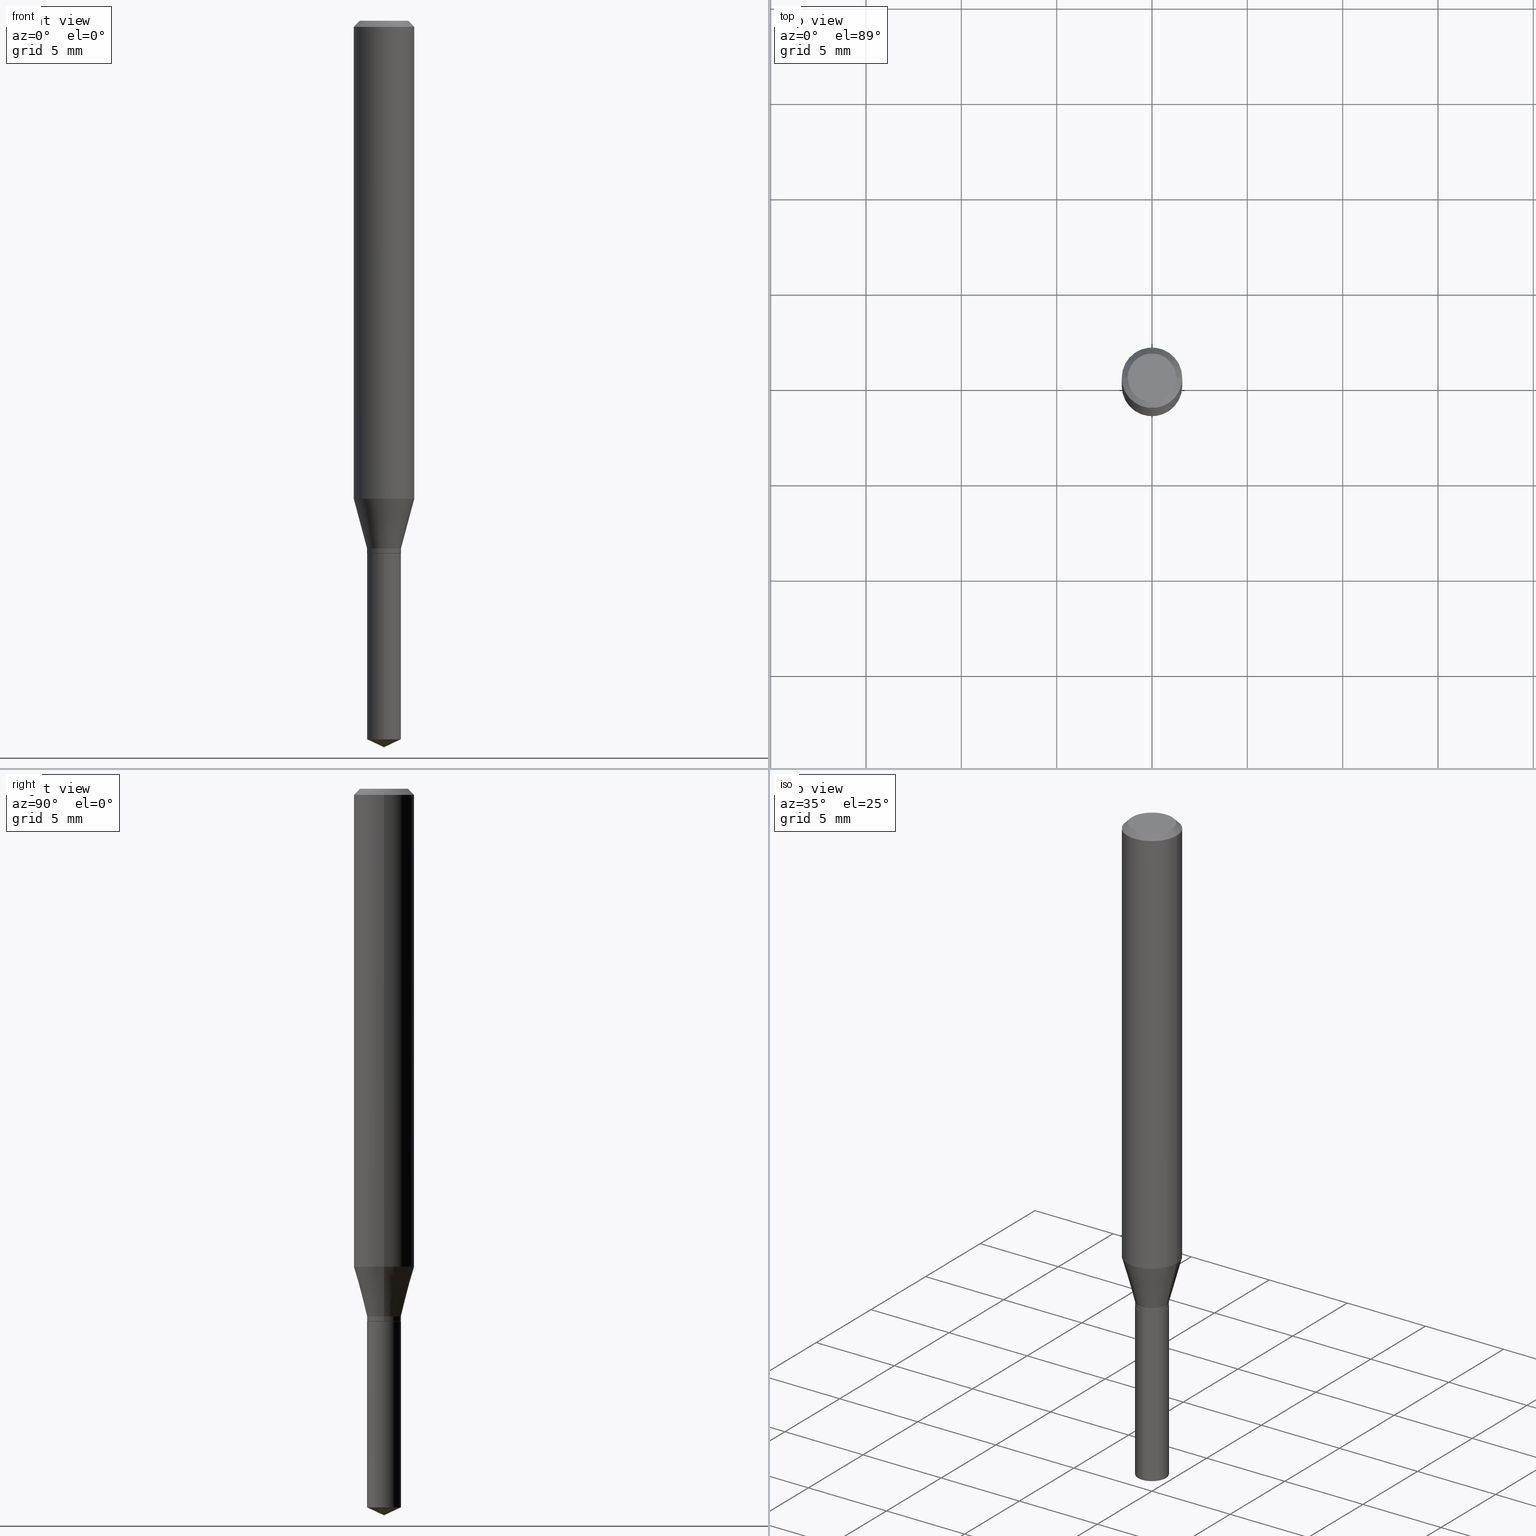
[diagram: canonical four-view strip — front | top / right | iso, engineering-drawing reading convention]
A machine part, canonical four-view strip (front | top / right | iso — engineering-drawing reading convention). The complete STEP part file that produces these views, byte-faithful:
ISO-10303-21;
HEADER;
FILE_DESCRIPTION (( 'STEP AP203' ),
    '1' );
FILE_NAME ('07348.STEP',
    '2024-04-23T20:38:07',
    ( '' ),
    ( '' ),
    'SwSTEP 2.0',
    'SolidWorks 2023',
    '' );
FILE_SCHEMA (( 'CONFIG_CONTROL_DESIGN' ));
ENDSEC;

DATA;
#1 = CARTESIAN_POINT ( 'NONE',  ( 2.664338264338706582E-29, -3.803968918669607738E-15, -1.089500000000000135 ) ) ;
#2 = VERTEX_POINT ( 'NONE', #422 ) ;
#3 = CARTESIAN_POINT ( 'NONE',  ( 2.664338264338706582E-29, -3.803968918669607738E-15, -1.089500000000000135 ) ) ;
#4 = EDGE_LOOP ( 'NONE', ( #256, #296, #30, #243 ) ) ;
#5 = DIRECTION ( 'NONE',  ( -2.445399690415121530E-29, 3.491580316559632610E-15, 1.000000000000000000 ) ) ;
#6 = AXIS2_PLACEMENT_3D ( 'NONE', #322, #138, #278 ) ;
#7 = DIRECTION ( 'NONE',  ( 0.7071067811865453523, -7.319954787623248157E-15, -0.7071067811865496822 ) ) ;
#8 = ADVANCED_FACE ( 'NONE', ( #265 ), #12, .T. ) ;
#9 = ORIENTED_EDGE ( 'NONE', *, *, #75, .T. ) ;
#10 = CARTESIAN_POINT ( 'NONE',  ( 3.893286209682126177E-47, -5.558580879666067980E-33, -1.592040838891559689E-18 ) ) ;
#11 = CYLINDRICAL_SURFACE ( 'NONE', #133, 0.03500000000000000333 ) ;
#12 = CONICAL_SURFACE ( 'NONE', #466, 0.03450000000000000289, 0.7853981633974141952 ) ;
#13 =( GEOMETRIC_REPRESENTATION_CONTEXT ( 3 ) GLOBAL_UNCERTAINTY_ASSIGNED_CONTEXT ( ( #213 ) ) GLOBAL_UNIT_ASSIGNED_CONTEXT ( ( #141, #244, #348 ) ) REPRESENTATION_CONTEXT ( 'NONE', 'WORKASPACE' ) );
#14 = EDGE_CURVE ( 'NONE', #472, #108, #423, .T. ) ;
#15 = APPROVAL_ROLE ( '' ) ;
#16 = ORIENTED_EDGE ( 'NONE', *, *, #136, .T. ) ;
#17 = APPLICATION_PROTOCOL_DEFINITION ( 'international standard', 'config_control_design', 1994, #55 ) ;
#18 = CC_DESIGN_APPROVAL ( #434, ( #411 ) ) ;
#19 = LINE ( 'NONE', #247, #62 ) ;
#20 = ADVANCED_FACE ( 'NONE', ( #293 ), #295, .T. ) ;
#21 = CARTESIAN_POINT ( 'NONE',  ( -2.444036937189830867E-16, -0.03500000000000518668, -1.483679231964575296 ) ) ;
#22 = AXIS2_PLACEMENT_3D ( 'NONE', #61, #101, #206 ) ;
#23 = DIRECTION ( 'NONE',  ( -2.445399690415121810E-29, 3.491580316559632610E-15, 1.000000000000000000 ) ) ;
#24 = ORIENTED_EDGE ( 'NONE', *, *, #190, .F. ) ;
#25 = DIRECTION ( 'NONE',  ( -2.445468806185136597E-29, 3.491481338843145583E-15, 1.000000000000000000 ) ) ;
#26 = DIRECTION ( 'NONE',  ( 2.445468806185136597E-29, -3.491481338843145583E-15, -1.000000000000000000 ) ) ;
#27 = EDGE_CURVE ( 'NONE', #82, #350, #43, .T. ) ;
#28 = PERSON_AND_ORGANIZATION_ROLE ( 'classification_officer' ) ;
#29 = VERTEX_POINT ( 'NONE', #414 ) ;
#30 = ORIENTED_EDGE ( 'NONE', *, *, #14, .F. ) ;
#31 = EDGE_LOOP ( 'NONE', ( #402, #450, #151, #485 ) ) ;
#32 = AXIS2_PLACEMENT_3D ( 'NONE', #116, #457, #342 ) ;
#33 = DIRECTION ( 'NONE',  ( 1.000000000000000000, -6.982962677686262766E-15, 0.000000000000000000 ) ) ;
#34 = APPROVAL_PERSON_ORGANIZATION ( #67, #453, #479 ) ;
#35 = ORIENTED_EDGE ( 'NONE', *, *, #486, .T. ) ;
#36 = CARTESIAN_POINT ( 'NONE',  ( 2.690015686803650369E-29, -3.840629472727460101E-15, -1.100000000000000089 ) ) ;
#37 = VERTEX_POINT ( 'NONE', #156 ) ;
#38 = CARTESIAN_POINT ( 'NONE',  ( 2.690015686803650369E-29, -3.840629472727460101E-15, -1.100000000000000089 ) ) ;
#39 = ADVANCED_FACE ( 'NONE', ( #259 ), #77, .T. ) ;
#40 = FACE_OUTER_BOUND ( 'NONE', #289, .T. ) ;
#41 = LINE ( 'NONE', #398, #474 ) ;
#42 = EDGE_LOOP ( 'NONE', ( #258, #16, #332, #48 ) ) ;
#43 = CIRCLE ( 'NONE', #143, 0.03500000000000000333 ) ;
#44 = CARTESIAN_POINT ( 'NONE',  ( -2.444036937189924051E-16, -0.03500000000000384054, -1.099999999999999867 ) ) ;
#45 = CIRCLE ( 'NONE', #313, 0.03500000000000000333 ) ;
#46 = DIRECTION ( 'NONE',  ( -2.445468806185136597E-29, 3.491481338843145583E-15, 1.000000000000000000 ) ) ;
#47 = LOCAL_TIME ( 16, 38, 7.000000000000000000, #69 ) ;
#48 = ORIENTED_EDGE ( 'NONE', *, *, #478, .F. ) ;
#49 = CARTESIAN_POINT ( 'NONE',  ( -0.06250000000000012490, -3.001544100687909891E-15, -0.9868686027918559533 ) ) ;
#50 = EDGE_CURVE ( 'NONE', #115, #68, #438, .T. ) ;
#51 = ORIENTED_EDGE ( 'NONE', *, *, #50, .T. ) ;
#52 = VECTOR ( 'NONE', #191, 39.37007874015748143 ) ;
#53 = AXIS2_PLACEMENT_3D ( 'NONE', #426, #92, #347 ) ;
#54 = APPROVAL_STATUS ( 'not_yet_approved' ) ;
#55 = APPLICATION_CONTEXT ( 'configuration controlled 3d designs of mechanical parts and assemblies' ) ;
#56 = EDGE_LOOP ( 'NONE', ( #146, #282, #111, #78 ) ) ;
#57 = CIRCLE ( 'NONE', #487, 0.04999999999999999584 ) ;
#58 = AXIS2_PLACEMENT_3D ( 'NONE', #433, #442, #362 ) ;
#59 = CARTESIAN_POINT ( 'NONE',  ( 2.690015686803650369E-29, -3.840629472727460101E-15, -1.100000000000000089 ) ) ;
#60 = DIRECTION ( 'NONE',  ( 1.000000000000000000, -6.982962677686261977E-15, 0.000000000000000000 ) ) ;
#61 = CARTESIAN_POINT ( 'NONE',  ( 2.690015686803650369E-29, -3.840629472727460101E-15, -1.100000000000000089 ) ) ;
#62 = VECTOR ( 'NONE', #169, 39.37007874015748143 ) ;
#63 = EDGE_CURVE ( 'NONE', #29, #304, #308, .T. ) ;
#64 = PERSON_AND_ORGANIZATION_ROLE ( 'creator' ) ;
#65 = ORIENTED_EDGE ( 'NONE', *, *, #271, .F. ) ;
#66 = LINE ( 'NONE', #328, #250 ) ;
#67 = PERSON_AND_ORGANIZATION ( #227, #387 ) ;
#68 = VERTEX_POINT ( 'NONE', #160 ) ;
#69 = COORDINATED_UNIVERSAL_TIME_OFFSET ( 5, 0, .BEHIND. ) ;
#70 = ORIENTED_EDGE ( 'NONE', *, *, #63, .F. ) ;
#71 = VECTOR ( 'NONE', #135, 39.37007874015748854 ) ;
#72 = DIRECTION ( 'NONE',  ( 1.000000000000000000, -6.982962677686262766E-15, 0.000000000000000000 ) ) ;
#73 = CARTESIAN_POINT ( 'NONE',  ( 0.000000000000000000, 0.000000000000000000, 0.000000000000000000 ) ) ;
#74 = ORIENTED_EDGE ( 'NONE', *, *, #464, .T. ) ;
#75 = EDGE_CURVE ( 'NONE', #68, #115, #57, .T. ) ;
#76 = LINE ( 'NONE', #222, #379 ) ;
#77 = CYLINDRICAL_SURFACE ( 'NONE', #217, 0.06250000000000005551 ) ;
#78 = ORIENTED_EDGE ( 'NONE', *, *, #214, .F. ) ;
#79 = CC_DESIGN_PERSON_AND_ORGANIZATION_ASSIGNMENT ( #140, #90, ( #427 ) ) ;
#80 = CARTESIAN_POINT ( 'NONE',  ( 3.668252923656895710E-29, -5.237152723863177100E-15, -1.500000000000000222 ) ) ;
#81 = CYLINDRICAL_SURFACE ( 'NONE', #430, 0.03500000000000000333 ) ;
#82 = VERTEX_POINT ( 'NONE', #262 ) ;
#83 = DIRECTION ( 'NONE',  ( -2.445468806185136597E-29, 3.491481338843145583E-15, 1.000000000000000000 ) ) ;
#84 = LOCAL_TIME ( 16, 38, 7.000000000000000000, #286 ) ;
#85 = MANIFOLD_SOLID_BREP ( 'Body-Move/Copy2[2]', #171 ) ;
#86 = ORIENTED_EDGE ( 'NONE', *, *, #432, .T. ) ;
#87 = DIRECTION ( 'NONE',  ( 1.000000000000000000, -6.982962677686262766E-15, 0.000000000000000000 ) ) ;
#88 = DESIGN_CONTEXT ( 'detailed design', #123, 'design' ) ;
#89 = CARTESIAN_POINT ( 'NONE',  ( 2.690015686803650369E-29, -3.840629472727460101E-15, -1.100000000000000089 ) ) ;
#90 = PERSON_AND_ORGANIZATION_ROLE ( 'design_owner' ) ;
#91 = CIRCLE ( 'NONE', #99, 0.03500000000000000333 ) ;
#92 = DIRECTION ( 'NONE',  ( -2.445399690415121530E-29, 3.491580316559632610E-15, 1.000000000000000000 ) ) ;
#93 = ADVANCED_FACE ( 'NONE', ( #291 ), #225, .F. ) ;
#94 = APPROVAL_STATUS ( 'not_yet_approved' ) ;
#95 = MECHANICAL_CONTEXT ( 'NONE', #55, 'mechanical' ) ;
#96 = FACE_OUTER_BOUND ( 'NONE', #198, .T. ) ;
#97 = ORIENTED_EDGE ( 'NONE', *, *, #161, .F. ) ;
#98 = ADVANCED_FACE ( 'NONE', ( #40 ), #189, .T. ) ;
#99 = AXIS2_PLACEMENT_3D ( 'NONE', #223, #183, #382 ) ;
#100 = AXIS2_PLACEMENT_3D ( 'NONE', #253, #370, #33 ) ;
#101 = DIRECTION ( 'NONE',  ( -2.445399690415121530E-29, 3.491580316559632610E-15, 1.000000000000000000 ) ) ;
#102 = ORIENTED_EDGE ( 'NONE', *, *, #305, .T. ) ;
#103 = DATE_TIME_ROLE ( 'classification_date' ) ;
#104 = CARTESIAN_POINT ( 'NONE',  ( 3.056836007731440977E-31, -4.364351673553961068E-17, -0.01250000000000008223 ) ) ;
#105 = EDGE_CURVE ( 'NONE', #394, #327, #91, .T. ) ;
#106 = DIRECTION ( 'NONE',  ( -1.000000000000000000, 6.982962677686266711E-15, 0.000000000000000000 ) ) ;
#107 = APPROVAL_DATE_TIME ( #443, #453 ) ;
#108 = VERTEX_POINT ( 'NONE', #49 ) ;
#109 = CARTESIAN_POINT ( 'NONE',  ( 3.056836007731440977E-31, -4.364351673553961068E-17, -0.01250000000000008223 ) ) ;
#110 = ORIENTED_EDGE ( 'NONE', *, *, #294, .F. ) ;
#111 = ORIENTED_EDGE ( 'NONE', *, *, #271, .T. ) ;
#112 = DIRECTION ( 'NONE',  ( 1.000000000000000000, -6.982962677686261977E-15, 0.000000000000000000 ) ) ;
#113 = CARTESIAN_POINT ( 'NONE',  ( 2.664338264338706582E-29, -3.803968918669607738E-15, -1.089500000000000135 ) ) ;
#114 = EDGE_CURVE ( 'NONE', #290, #394, #197, .T. ) ;
#115 = VERTEX_POINT ( 'NONE', #230 ) ;
#116 = CARTESIAN_POINT ( 'NONE',  ( 2.413356383930993538E-29, -3.445633310537973691E-15, -0.9868686027918559533 ) ) ;
#117 = PRODUCT_RELATED_PRODUCT_CATEGORY ( 'detail', '', ( #427 ) ) ;
#118 = EDGE_LOOP ( 'NONE', ( #155, #397 ) ) ;
#119 = CARTESIAN_POINT ( 'NONE',  ( 2.690015686803650369E-29, -3.840629472727460101E-15, -1.100000000000000089 ) ) ;
#120 = DIRECTION ( 'NONE',  ( 1.000000000000000000, -6.982962677686262766E-15, 0.000000000000000000 ) ) ;
#121 = CARTESIAN_POINT ( 'NONE',  ( 0.03450000000000000289, -4.081541685107636271E-15, -1.100000000000000089 ) ) ;
#122 = ORIENTED_EDGE ( 'NONE', *, *, #377, .T. ) ;
#123 = APPLICATION_CONTEXT ( 'configuration controlled 3d designs of mechanical parts and assemblies' ) ;
#124 = ADVANCED_FACE ( 'NONE', ( #371 ), #11, .T. ) ;
#125 = DIRECTION ( 'NONE',  ( -2.445399690415121810E-29, 3.491580316559632610E-15, 1.000000000000000000 ) ) ;
#126 = DIRECTION ( 'NONE',  ( 1.000000000000000000, -6.982962677686265922E-15, 4.875957971899673662E-29 ) ) ;
#127 = ORIENTED_EDGE ( 'NONE', *, *, #441, .F. ) ;
#128 = VECTOR ( 'NONE', #451, 39.37007874015747433 ) ;
#129 = DIRECTION ( 'NONE',  ( 1.000000000000000000, -6.982962677686261977E-15, 0.000000000000000000 ) ) ;
#130 = LOCAL_TIME ( 16, 38, 7.000000000000000000, #201 ) ;
#131 = PRODUCT_DEFINITION_SHAPE ( 'NONE', 'NONE',  #185 ) ;
#132 = PERSON_AND_ORGANIZATION ( #227, #387 ) ;
#133 = AXIS2_PLACEMENT_3D ( 'NONE', #462, #46, #186 ) ;
#134 = AXIS2_PLACEMENT_3D ( 'NONE', #119, #5, #418 ) ;
#135 = DIRECTION ( 'NONE',  ( 0.7071067811865232589, -2.468850131082003836E-15, 0.7071067811865715536 ) ) ;
#136 = EDGE_CURVE ( 'NONE', #68, #29, #195, .T. ) ;
#137 = ORIENTED_EDGE ( 'NONE', *, *, #432, .F. ) ;
#138 = DIRECTION ( 'NONE',  ( -2.445399690415121530E-29, 3.491580316559632610E-15, 1.000000000000000000 ) ) ;
#139 = AXIS2_PLACEMENT_3D ( 'NONE', #364, #445, #300 ) ;
#140 = PERSON_AND_ORGANIZATION ( #227, #387 ) ;
#141 =( CONVERSION_BASED_UNIT ( 'INCH', #359 ) LENGTH_UNIT ( ) NAMED_UNIT ( #297 ) );
#142 = DIRECTION ( 'NONE',  ( -2.445468806185136877E-29, 3.491481338843145188E-15, 1.000000000000000000 ) ) ;
#143 = AXIS2_PLACEMENT_3D ( 'NONE', #113, #234, #120 ) ;
#144 = DIRECTION ( 'NONE',  ( 1.000000000000000000, -6.982962677686266711E-15, 0.000000000000000000 ) ) ;
#145 = CIRCLE ( 'NONE', #237, 0.03500000000000000333 ) ;
#146 = ORIENTED_EDGE ( 'NONE', *, *, #272, .F. ) ;
#147 = DIRECTION ( 'NONE',  ( -2.445468806185136597E-29, 3.491481338843145583E-15, 1.000000000000000000 ) ) ;
#148 = VERTEX_POINT ( 'NONE', #330 ) ;
#149 = EDGE_CURVE ( 'NONE', #350, #82, #268, .T. ) ;
#150 = DIRECTION ( 'NONE',  ( -2.445468806185136597E-29, 3.491481338843145583E-15, 1.000000000000000000 ) ) ;
#151 = ORIENTED_EDGE ( 'NONE', *, *, #27, .F. ) ;
#152 = CARTESIAN_POINT ( 'NONE',  ( 3.628264761868534477E-29, -5.180276326927687830E-15, -1.483679231964575296 ) ) ;
#153 = DIRECTION ( 'NONE',  ( 1.000000000000000000, -6.982962677686262766E-15, 0.000000000000000000 ) ) ;
#154 = CARTESIAN_POINT ( 'NONE',  ( -9.260740279983036507E-28, 1.322265303911854087E-13, 37.87007874015748143 ) ) ;
#155 = ORIENTED_EDGE ( 'NONE', *, *, #469, .F. ) ;
#156 = CARTESIAN_POINT ( 'NONE',  ( -0.03500000000000000333, -3.572736367847787487E-15, -1.099499999999999922 ) ) ;
#157 = ADVANCED_FACE ( 'NONE', ( #353 ), #269, .F. ) ;
#158 = ORIENTED_EDGE ( 'NONE', *, *, #114, .F. ) ;
#159 = DIRECTION ( 'NONE',  ( -2.445468806185136597E-29, 3.491481338843145583E-15, 1.000000000000000000 ) ) ;
#160 = CARTESIAN_POINT ( 'NONE',  ( 0.04999999999999999584, -4.077247707424184212E-16, -1.592040838888913461E-18 ) ) ;
#161 = EDGE_CURVE ( 'NONE', #37, #350, #178, .T. ) ;
#162 = CALENDAR_DATE ( 2024, 23, 4 ) ;
#163 = CALENDAR_DATE ( 2024, 23, 4 ) ;
#164 = AXIS2_PLACEMENT_3D ( 'NONE', #318, #26, #106 ) ;
#165 = ORIENTED_EDGE ( 'NONE', *, *, #428, .T. ) ;
#166 = DATE_AND_TIME ( #163, #232 ) ;
#167 = ADVANCED_FACE ( 'NONE', ( #307 ), #408, .T. ) ;
#168 = APPLICATION_PROTOCOL_DEFINITION ( 'international standard', 'config_control_design', 1994, #123 ) ;
#169 = DIRECTION ( 'NONE',  ( -2.445468806185136877E-29, 3.491481338843145188E-15, 1.000000000000000000 ) ) ;
#170 = FACE_OUTER_BOUND ( 'NONE', #42, .T. ) ;
#171 = CLOSED_SHELL ( 'NONE', ( #8, #343, #39, #399, #124, #98, #20, #254, #449, #157, #369, #246 ) ) ;
#172 = CONICAL_SURFACE ( 'NONE', #392, 0.03500000000000000333, 0.2617993877991500740 ) ;
#173 = CARTESIAN_POINT ( 'NONE',  ( 0.03450000000000000289, -4.081541685107636271E-15, -1.100000000000000089 ) ) ;
#174 = EDGE_CURVE ( 'NONE', #290, #327, #41, .T. ) ;
#175 = CC_DESIGN_DATE_AND_TIME_ASSIGNMENT ( #283, #103, ( #221 ) ) ;
#176 = ORIENTED_EDGE ( 'NONE', *, *, #464, .F. ) ;
#177 = DIRECTION ( 'NONE',  ( -2.445468806185136597E-29, 3.491481338843145583E-15, 1.000000000000000000 ) ) ;
#178 = LINE ( 'NONE', #346, #317 ) ;
#179 = DIRECTION ( 'NONE',  ( -2.438088387897960049E-29, 3.491481338843145188E-15, 1.000000000000000000 ) ) ;
#180 = VECTOR ( 'NONE', #345, 39.37007874015748854 ) ;
#181 = CIRCLE ( 'NONE', #100, 0.03500000000000000333 ) ;
#182 = ORIENTED_EDGE ( 'NONE', *, *, #334, .T. ) ;
#183 = DIRECTION ( 'NONE',  ( -2.445399690415121530E-29, 3.491580316559632610E-15, 1.000000000000000000 ) ) ;
#184 = EDGE_LOOP ( 'NONE', ( #266, #261, #165, #24 ) ) ;
#185 = PRODUCT_DEFINITION ( 'UNKNOWN', '', #411, #88 ) ;
#186 = DIRECTION ( 'NONE',  ( 1.000000000000000000, -6.982962677686265922E-15, 4.876176775795936353E-29 ) ) ;
#187 = ORIENTED_EDGE ( 'NONE', *, *, #105, .T. ) ;
#188 = DIRECTION ( 'NONE',  ( 0.2588190451025213501, 1.565188264969621968E-15, 0.9659258262890682012 ) ) ;
#189 = CYLINDRICAL_SURFACE ( 'NONE', #391, 0.03500000000000000333 ) ;
#190 = EDGE_CURVE ( 'NONE', #108, #472, #260, .T. ) ;
#191 = DIRECTION ( 'NONE',  ( -2.445468806185136877E-29, 3.491481338843145188E-15, 1.000000000000000000 ) ) ;
#192 = AXIS2_PLACEMENT_3D ( 'NONE', #361, #25, #482 ) ;
#193 = VERTEX_POINT ( 'NONE', #121 ) ;
#194 = CONICAL_SURFACE ( 'NONE', #410, 0.03450000000000000289, 0.7853981633974141952 ) ;
#195 = LINE ( 'NONE', #338, #378 ) ;
#196 = ADVANCED_BREP_SHAPE_REPRESENTATION ( '07348', ( #412, #85, #209 ), #13 ) ;
#197 = LINE ( 'NONE', #80, #180 ) ;
#198 = EDGE_LOOP ( 'NONE', ( #137, #122, #182, #365 ) ) ;
#199 = EDGE_CURVE ( 'NONE', #341, #82, #415, .T. ) ;
#200 = AXIS2_PLACEMENT_3D ( 'NONE', #154, #339, #325 ) ;
#201 = COORDINATED_UNIVERSAL_TIME_OFFSET ( 5, 0, .BEHIND. ) ;
#202 = PERSON_AND_ORGANIZATION ( #227, #387 ) ;
#203 = CC_DESIGN_DATE_AND_TIME_ASSIGNMENT ( #166, #276, ( #185 ) ) ;
#204 = CYLINDRICAL_SURFACE ( 'NONE', #58, 0.06250000000000005551 ) ;
#205 = ADVANCED_FACE ( 'NONE', ( #420 ), #81, .T. ) ;
#206 = DIRECTION ( 'NONE',  ( -6.982962677686265922E-15, -1.000000000000000000, 3.902639990948947455E-15 ) ) ;
#207 = CONICAL_SURFACE ( 'NONE', #6, 84.42940631927420725, 1.134464013796315340 ) ;
#208 = CALENDAR_DATE ( 2024, 23, 4 ) ;
#209 = AXIS2_PLACEMENT_3D ( 'NONE', #351, #274, #429 ) ;
#210 = LINE ( 'NONE', #173, #71 ) ;
#211 = ORIENTED_EDGE ( 'NONE', *, *, #469, .T. ) ;
#212 = DIRECTION ( 'NONE',  ( -0.7071067811865453523, 2.468850131082234184E-15, -0.7071067811865496822 ) ) ;
#213 = UNCERTAINTY_MEASURE_WITH_UNIT (LENGTH_MEASURE( 1.000000000000000082E-05 ), #141, 'distance_accuracy_value', 'NONE');
#214 = EDGE_CURVE ( 'NONE', #304, #29, #456, .T. ) ;
#215 = ORIENTED_EDGE ( 'NONE', *, *, #441, .T. ) ;
#216 = DIRECTION ( 'NONE',  ( -2.445399690415121530E-29, 3.491580316559632610E-15, 1.000000000000000000 ) ) ;
#217 = AXIS2_PLACEMENT_3D ( 'NONE', #419, #150, #306 ) ;
#218 = PERSON_AND_ORGANIZATION ( #227, #387 ) ;
#219 = CONICAL_SURFACE ( 'NONE', #340, 0.06250000000000000000, 0.7853981633974452814 ) ;
#220 = EDGE_LOOP ( 'NONE', ( #35, #413, #406, #176 ) ) ;
#221 = SECURITY_CLASSIFICATION ( '', '', #331 ) ;
#222 = CARTESIAN_POINT ( 'NONE',  ( 0.03500000000000000333, -4.048372612388626915E-15, -1.089500000000000135 ) ) ;
#223 = CARTESIAN_POINT ( 'NONE',  ( 3.628264761868534477E-29, -5.180276326927687830E-15, -1.483679231964575296 ) ) ;
#224 = ORIENTED_EDGE ( 'NONE', *, *, #136, .F. ) ;
#225 = PLANE ( 'NONE',  #312 ) ;
#226 = ORIENTED_EDGE ( 'NONE', *, *, #105, .F. ) ;
#227 = PERSON ( 'UNSPECIFIED', 'UNSPECIFIED', 'UNSPECIFIED', ('UNSPECIFIED'), ('UNSPECIFIED'), ('UNSPECIFIED') ) ;
#228 = DIRECTION ( 'NONE',  ( 1.000000000000000000, -6.982962677686265922E-15, 4.876176775795935793E-29 ) ) ;
#229 = ADVANCED_FACE ( 'NONE', ( #284 ), #207, .T. ) ;
#230 = CARTESIAN_POINT ( 'NONE',  ( -0.04999999999999999584, 3.709698922520826725E-16, -1.592040838894077649E-18 ) ) ;
#231 = CARTESIAN_POINT ( 'NONE',  ( 2.690015686803650369E-29, -3.840629472727460101E-15, -1.100000000000000089 ) ) ;
#232 = LOCAL_TIME ( 16, 38, 7.000000000000000000, #388 ) ;
#233 = DIRECTION ( 'NONE',  ( 1.000000000000000000, -6.982962677686265922E-15, 4.876176775795936353E-29 ) ) ;
#234 = DIRECTION ( 'NONE',  ( -2.445468806185136597E-29, 3.491481338843145583E-15, 1.000000000000000000 ) ) ;
#235 = AXIS2_PLACEMENT_3D ( 'NONE', #104, #484, #144 ) ;
#236 = LINE ( 'NONE', #44, #281 ) ;
#237 = AXIS2_PLACEMENT_3D ( 'NONE', #280, #477, #396 ) ;
#238 = CC_DESIGN_APPROVAL ( #319, ( #185 ) ) ;
#239 = ADVANCED_FACE ( 'NONE', ( #437 ), #275, .T. ) ;
#240 = CALENDAR_DATE ( 2024, 23, 4 ) ;
#241 = AXIS2_PLACEMENT_3D ( 'NONE', #3, #425, #87 ) ;
#242 = VECTOR ( 'NONE', #142, 39.37007874015748143 ) ;
#243 = ORIENTED_EDGE ( 'NONE', *, *, #428, .F. ) ;
#244 =( NAMED_UNIT ( * ) PLANE_ANGLE_UNIT ( ) SI_UNIT ( $, .RADIAN. ) );
#245 = LINE ( 'NONE', #357, #400 ) ;
#246 = ADVANCED_FACE ( 'NONE', ( #96 ), #194, .T. ) ;
#247 = CARTESIAN_POINT ( 'NONE',  ( -0.06250000000000005551, 4.440892098500630106E-16, -3.074334431409318916E-30 ) ) ;
#248 = APPROVAL_DATE_TIME ( #389, #434 ) ;
#249 = CARTESIAN_POINT ( 'NONE',  ( -0.03500000000000000333, -3.572736367847787487E-15, -1.089500000000000135 ) ) ;
#250 = VECTOR ( 'NONE', #212, 39.37007874015748143 ) ;
#251 = ORIENTED_EDGE ( 'NONE', *, *, #316, .F. ) ;
#252 = CARTESIAN_POINT ( 'NONE',  ( 0.06250000000000012490, -3.882068477893365755E-15, -0.9868686027918559533 ) ) ;
#253 = CARTESIAN_POINT ( 'NONE',  ( 2.688792952400557567E-29, -3.838883732058038598E-15, -1.099499999999999922 ) ) ;
#254 = ADVANCED_FACE ( 'NONE', ( #355 ), #204, .T. ) ;
#255 = DIRECTION ( 'NONE',  ( -6.982962677686265922E-15, -1.000000000000000000, 3.902639990948947455E-15 ) ) ;
#256 = ORIENTED_EDGE ( 'NONE', *, *, #27, .T. ) ;
#257 = PLANE ( 'NONE',  #439 ) ;
#258 = ORIENTED_EDGE ( 'NONE', *, *, #75, .F. ) ;
#259 = FACE_OUTER_BOUND ( 'NONE', #447, .T. ) ;
#260 = CIRCLE ( 'NONE', #192, 0.06250000000000012490 ) ;
#261 = ORIENTED_EDGE ( 'NONE', *, *, #149, .T. ) ;
#262 = CARTESIAN_POINT ( 'NONE',  ( 0.03500000000000000333, -4.048372612388626915E-15, -1.089500000000000135 ) ) ;
#263 = DIRECTION ( 'NONE',  ( -6.328713451373372534E-15, -0.9063077870366488265, 0.4226182617407016062 ) ) ;
#264 = ORIENTED_EDGE ( 'NONE', *, *, #199, .T. ) ;
#265 = FACE_OUTER_BOUND ( 'NONE', #489, .T. ) ;
#266 = ORIENTED_EDGE ( 'NONE', *, *, #354, .F. ) ;
#267 = CARTESIAN_POINT ( 'NONE',  ( 2.690015686803650369E-29, -3.840629472727460101E-15, -1.100000000000000089 ) ) ;
#268 = CIRCLE ( 'NONE', #463, 0.03500000000000000333 ) ;
#269 = PLANE ( 'NONE',  #139 ) ;
#270 = DIRECTION ( 'NONE',  ( -2.445468806185136597E-29, 3.491481338843145583E-15, 1.000000000000000000 ) ) ;
#271 = EDGE_CURVE ( 'NONE', #472, #29, #480, .T. ) ;
#272 = EDGE_CURVE ( 'NONE', #108, #304, #19, .T. ) ;
#273 = CIRCLE ( 'NONE', #134, 0.03500000000000000333 ) ;
#274 = DIRECTION ( 'NONE',  ( 0.000000000000000000, 0.000000000000000000, 1.000000000000000000 ) ) ;
#275 = CYLINDRICAL_SURFACE ( 'NONE', #53, 0.03500000000000000333 ) ;
#276 = DATE_TIME_ROLE ( 'creation_date' ) ;
#277 = EDGE_LOOP ( 'NONE', ( #251, #187, #74, #127 ) ) ;
#278 = DIRECTION ( 'NONE',  ( -6.982962677686266711E-15, -1.000000000000000000, 3.520397390770459392E-15 ) ) ;
#279 = AXIS2_PLACEMENT_3D ( 'NONE', #409, #302, #373 ) ;
#280 = CARTESIAN_POINT ( 'NONE',  ( 2.688792952400557567E-29, -3.838883732058038598E-15, -1.099499999999999922 ) ) ;
#281 = VECTOR ( 'NONE', #125, 39.37007874015748143 ) ;
#282 = ORIENTED_EDGE ( 'NONE', *, *, #190, .T. ) ;
#283 = DATE_AND_TIME ( #208, #84 ) ;
#284 = FACE_OUTER_BOUND ( 'NONE', #336, .T. ) ;
#285 = CARTESIAN_POINT ( 'NONE',  ( 0.03500000000000000333, -4.083287425777057775E-15, -1.099499999999999922 ) ) ;
#286 = COORDINATED_UNIVERSAL_TIME_OFFSET ( 5, 0, .BEHIND. ) ;
#287 = CLOSED_SHELL ( 'NONE', ( #205, #229, #167, #239, #93 ) ) ;
#288 = CIRCLE ( 'NONE', #475, 0.03450000000000000289 ) ;
#289 = EDGE_LOOP ( 'NONE', ( #97, #323, #264, #363 ) ) ;
#290 = VERTEX_POINT ( 'NONE', #473 ) ;
#291 = FACE_OUTER_BOUND ( 'NONE', #372, .T. ) ;
#292 = ORIENTED_EDGE ( 'NONE', *, *, #486, .F. ) ;
#293 = FACE_OUTER_BOUND ( 'NONE', #184, .T. ) ;
#294 = EDGE_CURVE ( 'NONE', #341, #37, #145, .T. ) ;
#295 = CONICAL_SURFACE ( 'NONE', #241, 0.03500000000000000333, 0.2617993877991500740 ) ;
#296 = ORIENTED_EDGE ( 'NONE', *, *, #354, .T. ) ;
#297 = DIMENSIONAL_EXPONENTS ( 1.000000000000000000, 0.000000000000000000, 0.000000000000000000, 0.000000000000000000, 0.000000000000000000, 0.000000000000000000, 0.000000000000000000 ) ;
#298 = DIRECTION ( 'NONE',  ( -0.7071067811865232589, 7.493145998870265808E-15, 0.7071067811865715536 ) ) ;
#299 = EDGE_LOOP ( 'NONE', ( #158, #356, #226 ) ) ;
#300 = DIRECTION ( 'NONE',  ( -1.000000000000000000, 6.982962677686265922E-15, -4.876176775795935793E-29 ) ) ;
#301 = ORIENTED_EDGE ( 'NONE', *, *, #478, .T. ) ;
#302 = DIRECTION ( 'NONE',  ( -2.445468806185136597E-29, 3.491481338843145583E-15, 1.000000000000000000 ) ) ;
#303 = DIRECTION ( 'NONE',  ( -2.445468806185136877E-29, 3.491481338843145188E-15, 1.000000000000000000 ) ) ;
#304 = VERTEX_POINT ( 'NONE', #360 ) ;
#305 = EDGE_CURVE ( 'NONE', #148, #2, #424, .T. ) ;
#306 = DIRECTION ( 'NONE',  ( 1.000000000000000000, -6.982962677686267499E-15, 4.876176775795936353E-29 ) ) ;
#307 = FACE_OUTER_BOUND ( 'NONE', #299, .T. ) ;
#308 = CIRCLE ( 'NONE', #279, 0.06250000000000000000 ) ;
#309 = CC_DESIGN_PERSON_AND_ORGANIZATION_ASSIGNMENT ( #132, #431, ( #185 ) ) ;
#310 = DATE_AND_TIME ( #162, #130 ) ;
#311 = COORDINATED_UNIVERSAL_TIME_OFFSET ( 5, 0, .BEHIND. ) ;
#312 = AXIS2_PLACEMENT_3D ( 'NONE', #267, #452, #385 ) ;
#313 = AXIS2_PLACEMENT_3D ( 'NONE', #152, #216, #324 ) ;
#314 = LINE ( 'NONE', #470, #128 ) ;
#315 = ORIENTED_EDGE ( 'NONE', *, *, #214, .T. ) ;
#316 = EDGE_CURVE ( 'NONE', #394, #2, #245, .T. ) ;
#317 = VECTOR ( 'NONE', #303, 39.37007874015748143 ) ;
#318 = CARTESIAN_POINT ( 'NONE',  ( 3.056836007731440977E-31, -4.364351673553961068E-17, -0.01250000000000008223 ) ) ;
#319 = APPROVAL ( #54, 'UNSPECIFIED' ) ;
#320 = LOCAL_TIME ( 16, 38, 7.000000000000000000, #311 ) ;
#321 = PERSON_AND_ORGANIZATION ( #227, #387 ) ;
#322 = CARTESIAN_POINT ( 'NONE',  ( -9.260740279983036507E-28, 1.322265303911854087E-13, 37.87007874015748143 ) ) ;
#323 = ORIENTED_EDGE ( 'NONE', *, *, #417, .T. ) ;
#324 = DIRECTION ( 'NONE',  ( -6.982962677686265922E-15, -1.000000000000000000, 0.000000000000000000 ) ) ;
#325 = DIRECTION ( 'NONE',  ( -6.982962677686266711E-15, -1.000000000000000000, 3.520397390770459392E-15 ) ) ;
#326 = AXIS2_PLACEMENT_3D ( 'NONE', #10, #159, #376 ) ;
#327 = VERTEX_POINT ( 'NONE', #21 ) ;
#328 = CARTESIAN_POINT ( 'NONE',  ( -0.06250000000000000000, 3.927916506198521080E-16, -0.01250000000000008223 ) ) ;
#329 = CARTESIAN_POINT ( 'NONE',  ( 2.664338264338706582E-29, -3.803968918669607738E-15, -1.089500000000000135 ) ) ;
#330 = CARTESIAN_POINT ( 'NONE',  ( -2.444036937189924051E-16, -0.03500000000000384054, -1.099999999999999867 ) ) ;
#331 = SECURITY_CLASSIFICATION_LEVEL ( 'unclassified' ) ;
#332 = ORIENTED_EDGE ( 'NONE', *, *, #63, .T. ) ;
#333 = FACE_OUTER_BOUND ( 'NONE', #4, .T. ) ;
#334 = EDGE_CURVE ( 'NONE', #193, #341, #210, .T. ) ;
#335 = DIRECTION ( 'NONE',  ( -2.445468806185136597E-29, 3.491481338843145583E-15, 1.000000000000000000 ) ) ;
#336 = EDGE_LOOP ( 'NONE', ( #381, #435, #292 ) ) ;
#337 = CARTESIAN_POINT ( 'NONE',  ( -0.03450000000000000289, -3.595492228890225714E-15, -1.100000000000000089 ) ) ;
#338 = CARTESIAN_POINT ( 'NONE',  ( 0.06250000000000000000, -4.724246415962602840E-16, -0.01250000000000008223 ) ) ;
#339 = DIRECTION ( 'NONE',  ( -2.445399690415121530E-29, 3.491580316559632610E-15, 1.000000000000000000 ) ) ;
#340 = AXIS2_PLACEMENT_3D ( 'NONE', #109, #384, #344 ) ;
#341 = VERTEX_POINT ( 'NONE', #285 ) ;
#342 = DIRECTION ( 'NONE',  ( 1.000000000000000000, -6.982962677686264344E-15, 0.000000000000000000 ) ) ;
#343 = ADVANCED_FACE ( 'NONE', ( #170 ), #468, .T. ) ;
#344 = DIRECTION ( 'NONE',  ( -1.000000000000000000, 6.982962677686266711E-15, 0.000000000000000000 ) ) ;
#345 = DIRECTION ( 'NONE',  ( 6.439704144417027987E-15, 0.9063077870366519351, 0.4226182617406953335 ) ) ;
#346 = CARTESIAN_POINT ( 'NONE',  ( -0.03500000000000000333, 2.486899575160350887E-16, -1.721627281589217108E-30 ) ) ;
#347 = DIRECTION ( 'NONE',  ( -6.982962677686265922E-15, -1.000000000000000000, 3.902639990948947455E-15 ) ) ;
#348 =( NAMED_UNIT ( * ) SI_UNIT ( $, .STERADIAN. ) SOLID_ANGLE_UNIT ( ) );
#349 = CC_DESIGN_PERSON_AND_ORGANIZATION_ASSIGNMENT ( #481, #358, ( #411 ) ) ;
#350 = VERTEX_POINT ( 'NONE', #249 ) ;
#351 = CARTESIAN_POINT ( 'NONE',  ( 0.000000000000000000, 0.000000000000000000, 0.000000000000000000 ) ) ;
#352 = CC_DESIGN_APPROVAL ( #453, ( #221 ) ) ;
#353 = FACE_OUTER_BOUND ( 'NONE', #374, .T. ) ;
#354 = EDGE_CURVE ( 'NONE', #350, #108, #314, .T. ) ;
#355 = FACE_OUTER_BOUND ( 'NONE', #56, .T. ) ;
#356 = ORIENTED_EDGE ( 'NONE', *, *, #174, .T. ) ;
#357 = CARTESIAN_POINT ( 'NONE',  ( 2.486899575160619593E-16, 0.03499999999999615918, -1.100000000000000089 ) ) ;
#358 = PERSON_AND_ORGANIZATION_ROLE ( 'design_supplier' ) ;
#359 = LENGTH_MEASURE_WITH_UNIT ( LENGTH_MEASURE( 0.02539999999999999897 ), #455 );
#360 = CARTESIAN_POINT ( 'NONE',  ( -0.06250000000000000000, -1.300549203786692629E-15, -0.01250000000000008223 ) ) ;
#361 = CARTESIAN_POINT ( 'NONE',  ( 2.413356383930993538E-29, -3.445633310537973691E-15, -0.9868686027918559533 ) ) ;
#362 = DIRECTION ( 'NONE',  ( 1.000000000000000000, -6.982962677686267499E-15, 4.876176775795936353E-29 ) ) ;
#363 = ORIENTED_EDGE ( 'NONE', *, *, #149, .F. ) ;
#364 = CARTESIAN_POINT ( 'NONE',  ( 1.946643104841063088E-47, -2.779290439833033990E-33, -7.960204194457798443E-19 ) ) ;
#365 = ORIENTED_EDGE ( 'NONE', *, *, #417, .F. ) ;
#366 = DIRECTION ( 'NONE',  ( -2.445468806185136597E-29, 3.491481338843145583E-15, 1.000000000000000000 ) ) ;
#367 = CIRCLE ( 'NONE', #467, 0.03450000000000000289 ) ;
#368 = VERTEX_POINT ( 'NONE', #407 ) ;
#369 = ADVANCED_FACE ( 'NONE', ( #448 ), #257, .F. ) ;
#370 = DIRECTION ( 'NONE',  ( -2.445468806185136597E-29, 3.491481338843145583E-15, 1.000000000000000000 ) ) ;
#371 = FACE_OUTER_BOUND ( 'NONE', #31, .T. ) ;
#372 = EDGE_LOOP ( 'NONE', ( #102, #215 ) ) ;
#373 = DIRECTION ( 'NONE',  ( 1.000000000000000000, -6.982962677686266711E-15, 0.000000000000000000 ) ) ;
#374 = EDGE_LOOP ( 'NONE', ( #51, #9 ) ) ;
#375 = FACE_OUTER_BOUND ( 'NONE', #421, .T. ) ;
#376 = DIRECTION ( 'NONE',  ( 1.000000000000000000, -6.982962677686265922E-15, 4.875957971899673662E-29 ) ) ;
#377 = EDGE_CURVE ( 'NONE', #368, #193, #288, .T. ) ;
#378 = VECTOR ( 'NONE', #7, 39.37007874015748143 ) ;
#379 = VECTOR ( 'NONE', #188, 39.37007874015747433 ) ;
#380 = CARTESIAN_POINT ( 'NONE',  ( 0.03500000000000000333, -2.444036937190193250E-16, 1.706661871528577808E-30 ) ) ;
#381 = ORIENTED_EDGE ( 'NONE', *, *, #174, .F. ) ;
#382 = DIRECTION ( 'NONE',  ( -6.982962677686265922E-15, -1.000000000000000000, 0.000000000000000000 ) ) ;
#383 = CC_DESIGN_PERSON_AND_ORGANIZATION_ASSIGNMENT ( #218, #28, ( #221 ) ) ;
#384 = DIRECTION ( 'NONE',  ( 2.445468806185136597E-29, -3.491481338843145583E-15, -1.000000000000000000 ) ) ;
#385 = DIRECTION ( 'NONE',  ( 6.982962677686265922E-15, 1.000000000000000000, -3.491580316559632610E-15 ) ) ;
#386 = APPROVAL_ROLE ( '' ) ;
#387 = ORGANIZATION ( 'UNSPECIFIED', 'UNSPECIFIED', '' ) ;
#388 = COORDINATED_UNIVERSAL_TIME_OFFSET ( 5, 0, .BEHIND. ) ;
#389 = DATE_AND_TIME ( #240, #320 ) ;
#390 = DIRECTION ( 'NONE',  ( -2.445468806185136597E-29, 3.491481338843145583E-15, 1.000000000000000000 ) ) ;
#391 = AXIS2_PLACEMENT_3D ( 'NONE', #73, #83, #233 ) ;
#392 = AXIS2_PLACEMENT_3D ( 'NONE', #329, #366, #72 ) ;
#393 = APPROVAL_PERSON_ORGANIZATION ( #202, #434, #15 ) ;
#394 = VERTEX_POINT ( 'NONE', #404 ) ;
#395 = CALENDAR_DATE ( 2024, 23, 4 ) ;
#396 = DIRECTION ( 'NONE',  ( 1.000000000000000000, -6.982962677686262766E-15, 0.000000000000000000 ) ) ;
#397 = ORIENTED_EDGE ( 'NONE', *, *, #377, .F. ) ;
#398 = CARTESIAN_POINT ( 'NONE',  ( 3.668099535622682155E-29, -5.237370474839448718E-15, -1.500000000000000222 ) ) ;
#399 = ADVANCED_FACE ( 'NONE', ( #333 ), #172, .T. ) ;
#400 = VECTOR ( 'NONE', #23, 39.37007874015748143 ) ;
#401 = APPROVAL_PERSON_ORGANIZATION ( #436, #319, #386 ) ;
#402 = ORIENTED_EDGE ( 'NONE', *, *, #294, .T. ) ;
#403 = ORIENTED_EDGE ( 'NONE', *, *, #50, .F. ) ;
#404 = CARTESIAN_POINT ( 'NONE',  ( 2.486899575160713763E-16, 0.03499999999999482692, -1.483679231964575296 ) ) ;
#405 = APPROVAL_STATUS ( 'not_yet_approved' ) ;
#406 = ORIENTED_EDGE ( 'NONE', *, *, #305, .F. ) ;
#407 = CARTESIAN_POINT ( 'NONE',  ( -0.03450000000000000289, -3.592843001716114513E-15, -1.100000000000000089 ) ) ;
#408 = CONICAL_SURFACE ( 'NONE', #200, 84.42940631927420725, 1.134464013796315340 ) ;
#409 = CARTESIAN_POINT ( 'NONE',  ( 3.056836007731440977E-31, -4.364351673553961068E-17, -0.01250000000000008223 ) ) ;
#410 = AXIS2_PLACEMENT_3D ( 'NONE', #59, #390, #60 ) ;
#411 = PRODUCT_DEFINITION_FORMATION_WITH_SPECIFIED_SOURCE ( 'ANY', '', #427, .NOT_KNOWN. ) ;
#412 = MANIFOLD_SOLID_BREP ( 'Body-Move/Copy2[1]', #287 ) ;
#413 = ORIENTED_EDGE ( 'NONE', *, *, #316, .T. ) ;
#414 = CARTESIAN_POINT ( 'NONE',  ( 0.06250000000000000000, -4.800786840909312308E-16, -0.01250000000000008223 ) ) ;
#415 = LINE ( 'NONE', #380, #52 ) ;
#416 = ORIENTED_EDGE ( 'NONE', *, *, #272, .T. ) ;
#417 = EDGE_CURVE ( 'NONE', #37, #341, #181, .T. ) ;
#418 = DIRECTION ( 'NONE',  ( -6.982962677686265922E-15, -1.000000000000000000, 3.902639990948947455E-15 ) ) ;
#419 = CARTESIAN_POINT ( 'NONE',  ( 0.000000000000000000, 0.000000000000000000, 0.000000000000000000 ) ) ;
#420 = FACE_OUTER_BOUND ( 'NONE', #220, .T. ) ;
#421 = EDGE_LOOP ( 'NONE', ( #224, #403, #301, #315 ) ) ;
#422 = CARTESIAN_POINT ( 'NONE',  ( 2.486899575160713763E-16, 0.03499999999999615918, -1.100000000000000089 ) ) ;
#423 = CIRCLE ( 'NONE', #32, 0.06250000000000012490 ) ;
#424 = CIRCLE ( 'NONE', #22, 0.03500000000000000333 ) ;
#425 = DIRECTION ( 'NONE',  ( -2.445468806185136597E-29, 3.491481338843145583E-15, 1.000000000000000000 ) ) ;
#426 = CARTESIAN_POINT ( 'NONE',  ( 2.690015686803650369E-29, -3.840629472727460101E-15, -1.100000000000000089 ) ) ;
#427 = PRODUCT ( '07348', '07348', '', ( #95 ) ) ;
#428 = EDGE_CURVE ( 'NONE', #82, #472, #76, .T. ) ;
#429 = DIRECTION ( 'NONE',  ( 1.000000000000000000, 0.000000000000000000, 0.000000000000000000 ) ) ;
#430 = AXIS2_PLACEMENT_3D ( 'NONE', #231, #460, #255 ) ;
#431 = PERSON_AND_ORGANIZATION_ROLE ( 'creator' ) ;
#432 = EDGE_CURVE ( 'NONE', #368, #37, #490, .T. ) ;
#433 = CARTESIAN_POINT ( 'NONE',  ( 0.000000000000000000, 0.000000000000000000, 0.000000000000000000 ) ) ;
#434 = APPROVAL ( #94, 'UNSPECIFIED' ) ;
#435 = ORIENTED_EDGE ( 'NONE', *, *, #114, .T. ) ;
#436 = PERSON_AND_ORGANIZATION ( #227, #387 ) ;
#437 = FACE_OUTER_BOUND ( 'NONE', #277, .T. ) ;
#438 = CIRCLE ( 'NONE', #326, 0.04999999999999999584 ) ;
#439 = AXIS2_PLACEMENT_3D ( 'NONE', #488, #179, #228 ) ;
#440 = CARTESIAN_POINT ( 'NONE',  ( 0.06250000000000005551, -4.364351673553921131E-16, 3.047610484872463023E-30 ) ) ;
#441 = EDGE_CURVE ( 'NONE', #2, #148, #273, .T. ) ;
#442 = DIRECTION ( 'NONE',  ( -2.445468806185136597E-29, 3.491481338843145583E-15, 1.000000000000000000 ) ) ;
#443 = DATE_AND_TIME ( #395, #47 ) ;
#444 = DIRECTION ( 'NONE',  ( 1.000000000000000000, -6.982962677686261977E-15, 0.000000000000000000 ) ) ;
#445 = DIRECTION ( 'NONE',  ( 2.438088387897960049E-29, -3.491481338843145188E-15, -1.000000000000000000 ) ) ;
#446 = VECTOR ( 'NONE', #298, 39.37007874015748854 ) ;
#447 = EDGE_LOOP ( 'NONE', ( #458, #416, #70, #65 ) ) ;
#448 = FACE_OUTER_BOUND ( 'NONE', #118, .T. ) ;
#449 = ADVANCED_FACE ( 'NONE', ( #375 ), #219, .T. ) ;
#450 = ORIENTED_EDGE ( 'NONE', *, *, #161, .T. ) ;
#451 = DIRECTION ( 'NONE',  ( -0.2588190451025213501, 5.211531920934551042E-15, 0.9659258262890682012 ) ) ;
#452 = DIRECTION ( 'NONE',  ( 2.445399690415121250E-29, -3.491580316559632610E-15, -1.000000000000000000 ) ) ;
#453 = APPROVAL ( #405, 'UNSPECIFIED' ) ;
#454 = ORIENTED_EDGE ( 'NONE', *, *, #334, .F. ) ;
#455 =( LENGTH_UNIT ( ) NAMED_UNIT ( * ) SI_UNIT ( $, .METRE. ) );
#456 = CIRCLE ( 'NONE', #235, 0.06250000000000000000 ) ;
#457 = DIRECTION ( 'NONE',  ( -2.445468806185136597E-29, 3.491481338843145583E-15, 1.000000000000000000 ) ) ;
#458 = ORIENTED_EDGE ( 'NONE', *, *, #14, .T. ) ;
#459 = CARTESIAN_POINT ( 'NONE',  ( 3.893286209682126177E-47, -5.558580879666067980E-33, -1.592040838891559689E-18 ) ) ;
#460 = DIRECTION ( 'NONE',  ( -2.445399690415121530E-29, 3.491580316559632610E-15, 1.000000000000000000 ) ) ;
#461 = DIRECTION ( 'NONE',  ( -2.445468806185136597E-29, 3.491481338843145583E-15, 1.000000000000000000 ) ) ;
#462 = CARTESIAN_POINT ( 'NONE',  ( 0.000000000000000000, 0.000000000000000000, 0.000000000000000000 ) ) ;
#463 = AXIS2_PLACEMENT_3D ( 'NONE', #1, #335, #153 ) ;
#464 = EDGE_CURVE ( 'NONE', #327, #148, #236, .T. ) ;
#465 = APPROVAL_DATE_TIME ( #310, #319 ) ;
#466 = AXIS2_PLACEMENT_3D ( 'NONE', #36, #270, #129 ) ;
#467 = AXIS2_PLACEMENT_3D ( 'NONE', #89, #177, #444 ) ;
#468 = CONICAL_SURFACE ( 'NONE', #164, 0.06250000000000000000, 0.7853981633974452814 ) ;
#469 = EDGE_CURVE ( 'NONE', #193, #368, #367, .T. ) ;
#470 = CARTESIAN_POINT ( 'NONE',  ( -0.03500000000000000333, -3.555278961153572452E-15, -1.089500000000000135 ) ) ;
#471 = CC_DESIGN_PERSON_AND_ORGANIZATION_ASSIGNMENT ( #321, #64, ( #411 ) ) ;
#472 = VERTEX_POINT ( 'NONE', #252 ) ;
#473 = CARTESIAN_POINT ( 'NONE',  ( 3.668099535622682715E-29, -5.237370474839449507E-15, -1.500000000000000222 ) ) ;
#474 = VECTOR ( 'NONE', #263, 39.37007874015748143 ) ;
#475 = AXIS2_PLACEMENT_3D ( 'NONE', #38, #147, #112 ) ;
#476 = CC_DESIGN_SECURITY_CLASSIFICATION ( #221, ( #411 ) ) ;
#477 = DIRECTION ( 'NONE',  ( -2.445468806185136597E-29, 3.491481338843145583E-15, 1.000000000000000000 ) ) ;
#478 = EDGE_CURVE ( 'NONE', #115, #304, #66, .T. ) ;
#479 = APPROVAL_ROLE ( '' ) ;
#480 = LINE ( 'NONE', #440, #242 ) ;
#481 = PERSON_AND_ORGANIZATION ( #227, #387 ) ;
#482 = DIRECTION ( 'NONE',  ( 1.000000000000000000, -6.982962677686264344E-15, 0.000000000000000000 ) ) ;
#483 = SHAPE_DEFINITION_REPRESENTATION ( #131, #196 ) ;
#484 = DIRECTION ( 'NONE',  ( -2.445468806185136597E-29, 3.491481338843145583E-15, 1.000000000000000000 ) ) ;
#485 = ORIENTED_EDGE ( 'NONE', *, *, #199, .F. ) ;
#486 = EDGE_CURVE ( 'NONE', #327, #394, #45, .T. ) ;
#487 = AXIS2_PLACEMENT_3D ( 'NONE', #459, #461, #126 ) ;
#488 = CARTESIAN_POINT ( 'NONE',  ( 2.690015686803650369E-29, -3.840629472727460101E-15, -1.100000000000000089 ) ) ;
#489 = EDGE_LOOP ( 'NONE', ( #211, #86, #110, #454 ) ) ;
#490 = LINE ( 'NONE', #337, #446 ) ;
ENDSEC;
END-ISO-10303-21;
